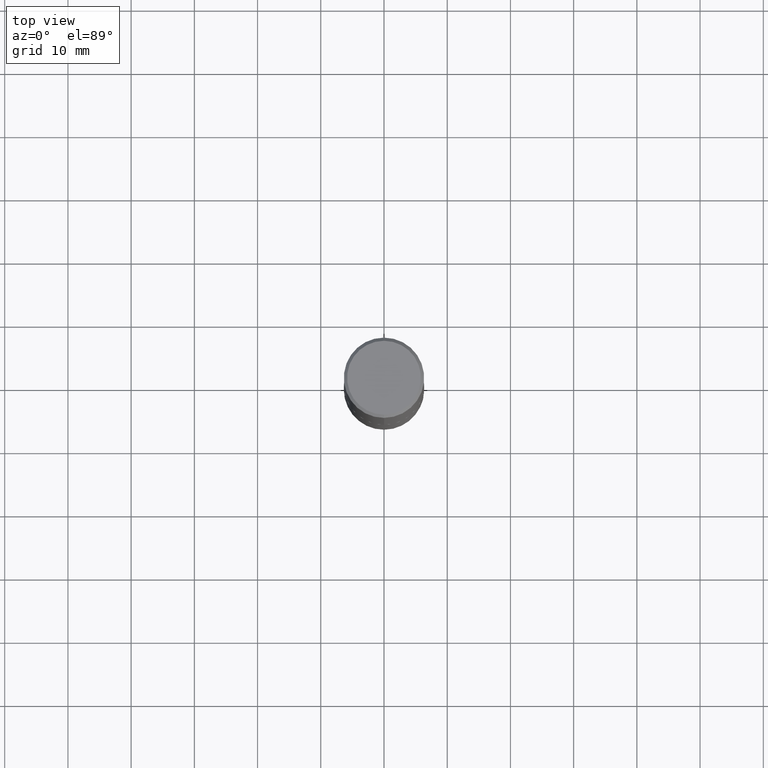
[diagram: clean part render]
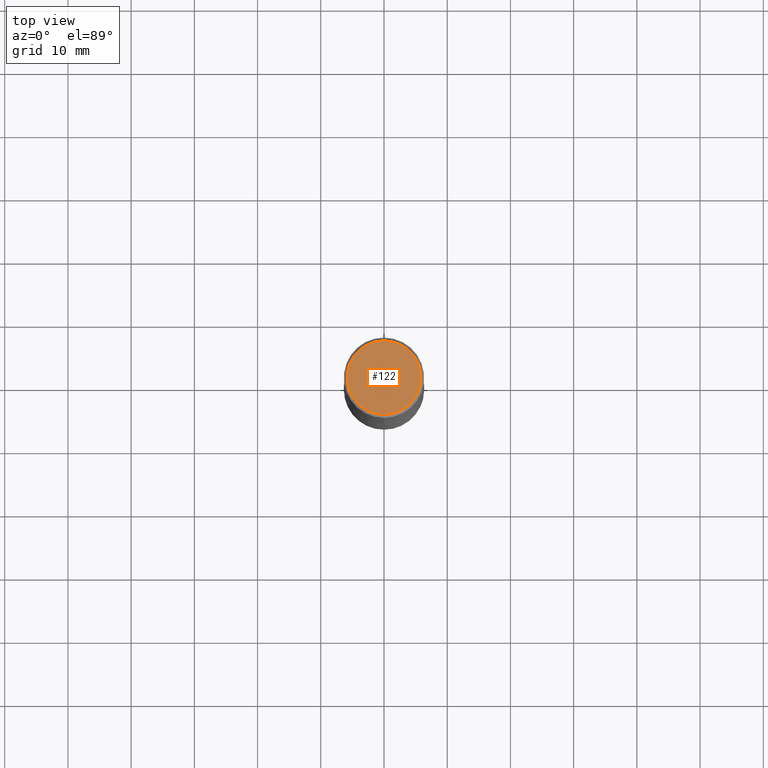
[diagram: same view with one face highlighted and labeled with its STEP entity id]
A machine part, top view. The second image highlights one B-rep face of the part: STEP entity #122.
In plain terms, the highlighted planar face has unit normal (0, -0, -1).
Its self-contained STEP definition (entity closure, byte-faithful):
#6 = VERTEX_POINT ( 'NONE', #124 ) ;
#40 = ORIENTED_EDGE ( 'NONE', *, *, #287, .T. ) ;
#42 = CARTESIAN_POINT ( 'NONE',  ( 1.606081415867840278E-15, 0.2299999999999998712, -7.604147169260680974E-16 ) ) ;
#55 = CIRCLE ( 'NONE', #397, 0.2299999999999998712 ) ;
#79 = AXIS2_PLACEMENT_3D ( 'NONE', #390, #109, #329 ) ;
#89 = CIRCLE ( 'NONE', #79, 0.2299999999999998712 ) ;
#95 = ORIENTED_EDGE ( 'NONE', *, *, #98, .T. ) ;
#98 = EDGE_CURVE ( 'NONE', #6, #349, #89, .T. ) ;
#109 = DIRECTION ( 'NONE',  ( -2.445109736820922196E-29, 3.491995546609659985E-15, 1.000000000000000000 ) ) ;
#122 = ADVANCED_FACE ( 'NONE', ( #298 ), #263, .F. ) ;
#124 = CARTESIAN_POINT ( 'NONE',  ( 1.675911042644703577E-15, 0.2299999999999998712, -7.176704581319149582E-16 ) ) ;
#131 = EDGE_LOOP ( 'NONE', ( #95, #40 ) ) ;
#145 = CARTESIAN_POINT ( 'NONE',  ( -2.090288067415548547E-45, 2.985255227046278576E-31, 8.548851758830648794E-17 ) ) ;
#208 = DIRECTION ( 'NONE',  ( 2.445109736820921635E-29, -3.491995546609659985E-15, -1.000000000000000000 ) ) ;
#231 = AXIS2_PLACEMENT_3D ( 'NONE', #42, #208, #324 ) ;
#254 = CARTESIAN_POINT ( 'NONE',  ( -1.646519519465166573E-15, -0.2299999999999998712, 8.886474933085278108E-16 ) ) ;
#263 = PLANE ( 'NONE',  #231 ) ;
#287 = EDGE_CURVE ( 'NONE', #349, #6, #55, .T. ) ;
#298 = FACE_OUTER_BOUND ( 'NONE', #131, .T. ) ;
#302 = DIRECTION ( 'NONE',  ( -6.982962677686265922E-15, -1.000000000000000000, 3.491995546609659985E-15 ) ) ;
#324 = DIRECTION ( 'NONE',  ( 6.982962677686265922E-15, 1.000000000000000000, -3.491995546609659985E-15 ) ) ;
#329 = DIRECTION ( 'NONE',  ( -6.982962677686265922E-15, -1.000000000000000000, 3.491995546609659985E-15 ) ) ;
#349 = VERTEX_POINT ( 'NONE', #254 ) ;
#363 = DIRECTION ( 'NONE',  ( -2.445109736820922196E-29, 3.491995546609659985E-15, 1.000000000000000000 ) ) ;
#390 = CARTESIAN_POINT ( 'NONE',  ( -2.090288067415548547E-45, 2.985255227046278576E-31, 8.548851758830648794E-17 ) ) ;
#397 = AXIS2_PLACEMENT_3D ( 'NONE', #145, #363, #302 ) ;